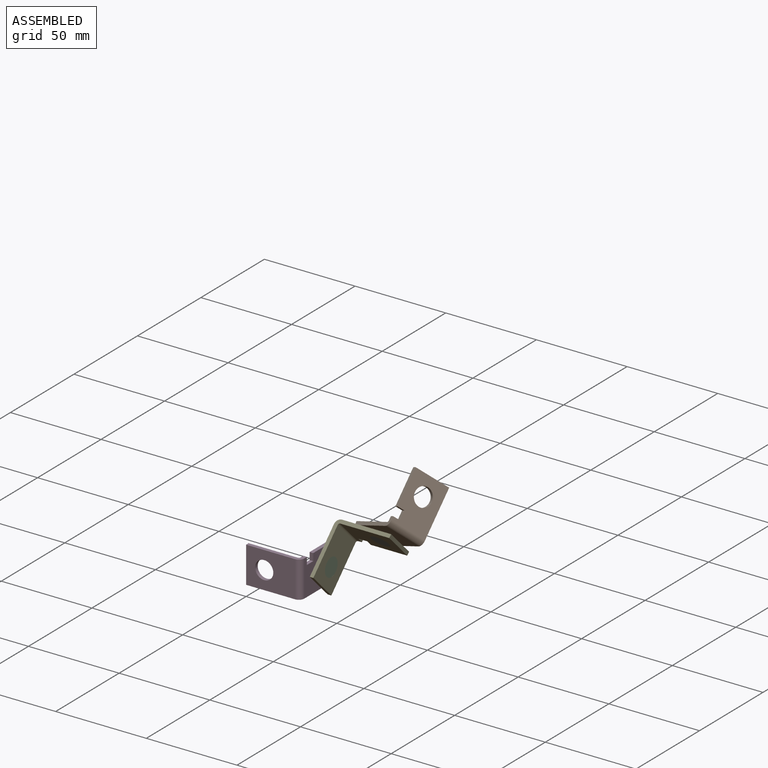
[diagram: assembled view]
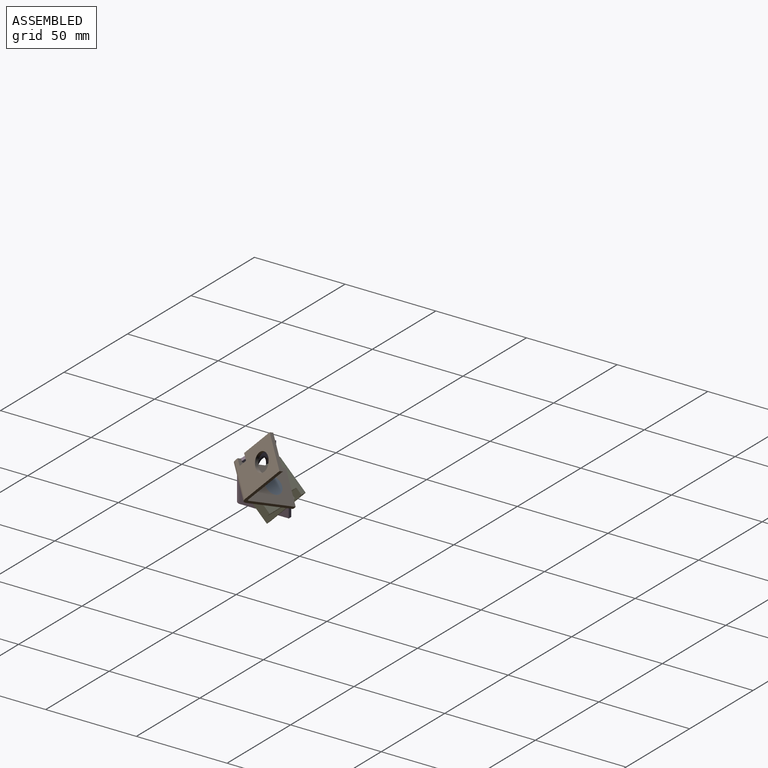
[diagram: assembled view, second angle]
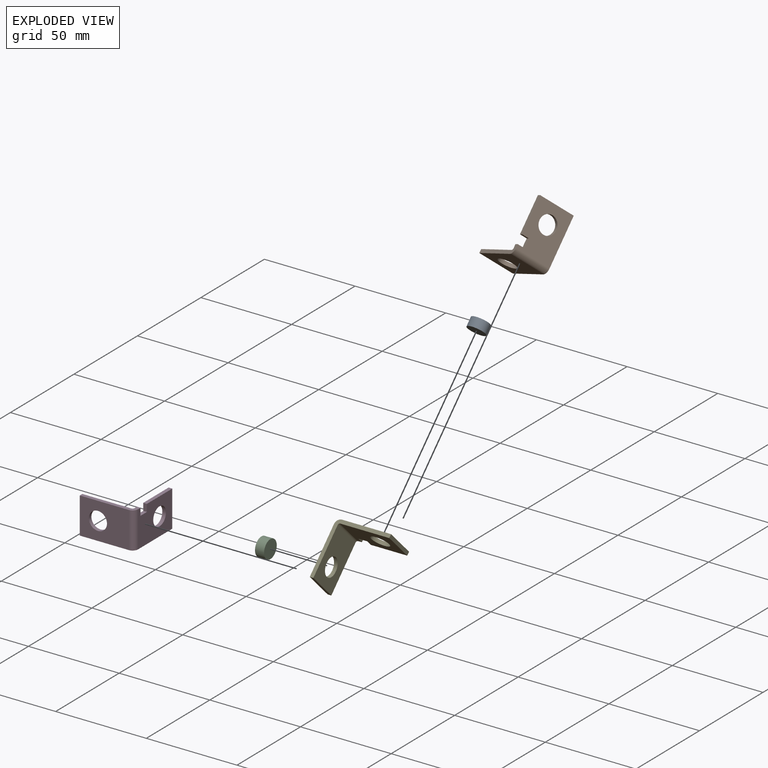
[diagram: exploded view]
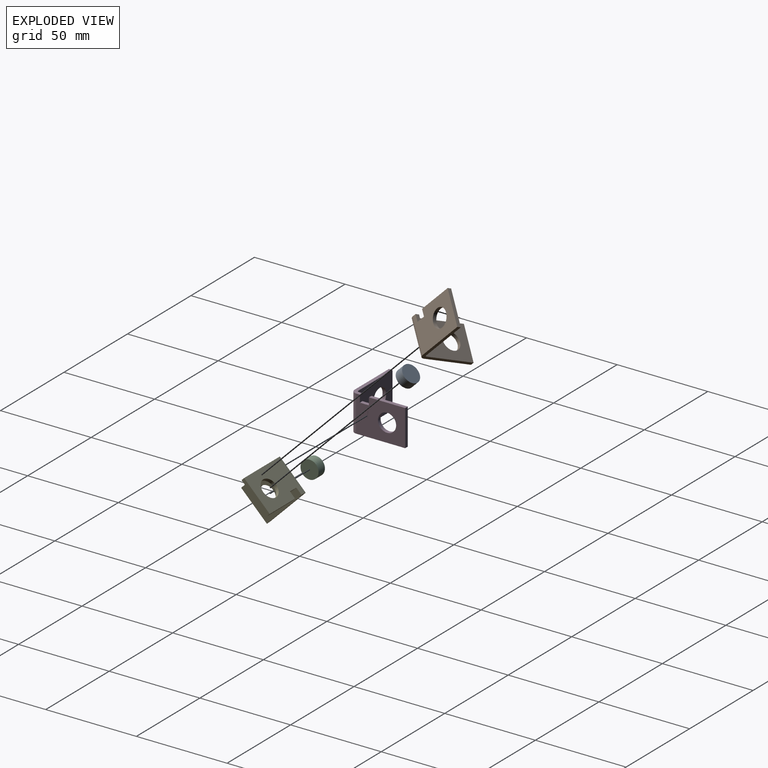
[diagram: exploded view, second angle]
ASSEMBLY  parts=5 mates=3
PART A: 3 faces, bbox 10x5x10 mm
  f0: cylinder r=5mm len=10mm, axis (0,1,0), area 157.1mm2, adj f1,f2
  f1: plane 10x10mm, normal (0,-1,0), area 78.5mm2, adj f0
  f2: plane 10x10mm, normal (0,1,0), area 78.5mm2, adj f0
PART B: 16 faces, bbox 20x30x30 mm
  f0: plane 20x2mm, normal (1,0,0), area 40mm2, adj f1,f8,f9,f14
  f1: plane 27x20mm, normal (0,-1,0), area 441.5mm2, adj f0,f2,f5,f9,f10,f12,f13,f14
  f2: plane 30x30mm, normal (-1,0,0), area 114.3mm2, adj f1,f3,f6,f7,f8,f9,f11,f15
  f3: plane 20x2mm, normal (0,-1,0), area 40mm2, adj f2,f5,f6,f7
  f4: cylinder r=5mm len=10mm, axis (0,0,-1), area 62.8mm2, adj f6,f7
  f5: plane 30x5mm, normal (1,0,0), area 64.3mm2, adj f1,f3,f6,f7,f8,f11,f13,f15
  f6: plane 27x20mm, normal (0,0,1), area 461.5mm2, adj f2,f3,f4,f5,f15
  f7: plane 27x20mm, normal (0,0,-1), area 461.5mm2, adj f2,f3,f4,f5,f11
  f8: plane 27x20mm, normal (0,1,0), area 441.5mm2, adj f0,f2,f5,f9,f10,f11,f12,f13
  f9: plane 20x2mm, normal (0,0,1), area 40mm2, adj f0,f1,f2,f8
  f10: cylinder r=5mm len=10mm, axis (0,-1,0), area 62.8mm2, adj f1,f8
  f11: cylinder r=3mm len=20mm, axis (-1,0,0), area 94.2mm2, adj f2,f5,f7,f8
  f12: plane 5x2mm, normal (1,0,0), area 10mm2, adj f1,f8,f13,f14
  f13: plane 4x2mm, normal (0,0,1), area 8mm2, adj f1,f5,f8,f12
  f14: plane 4x2mm, normal (0,0,-1), area 8mm2, adj f0,f1,f8,f12
  f15: cylinder r=1mm len=20mm, axis (1,0,0), area 31.4mm2, adj f1,f2,f5,f6
PART C: same geometry as A
PART D: same geometry as B
PART E: same geometry as B
PLACE A rot(axis=(-0.77,0.24,-0.59),144.6deg) t=(51,32.73,22.73)mm fixed
PLACE B rot(axis=(-0.22,-0.37,-0.9),124.7deg) t=(47.26,44.49,15.2)mm
PLACE C rot(axis=(0,0,1),90deg) t=(28,20,10)mm fixed
PLACE D rot(axis=(-0.58,-0.58,-0.58),120deg) t=(0,0,0)mm fixed
PLACE E rot(axis=(0.36,0.86,0.36),98.4deg) t=(31,5.86,10)mm fixed
MATE revolute C.f0 <-> D.f10  axis (-1,0,0) through (28,20,10)mm
MATE revolute E.f4 <-> C.f0  axis (1,0,0) through (33,20,10)mm
MATE revolute A.f0 <-> B.f4  axis (0,0.71,0.71) through (51,36.26,26.26)mm
